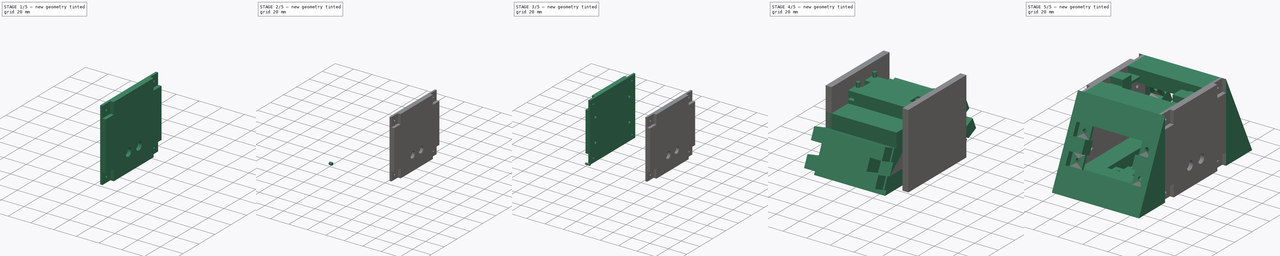
[diagram: build sequence overview — one tinted view per stage of 5, left to right]
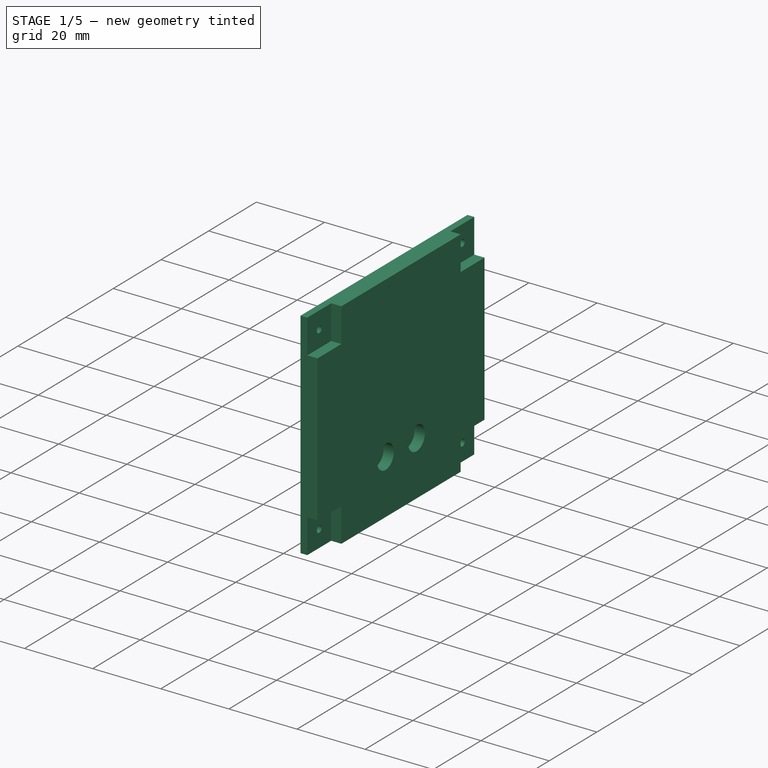
[diagram: stage 1 of 5 — iso view after this stage's code; geometry added in this stage tinted green]
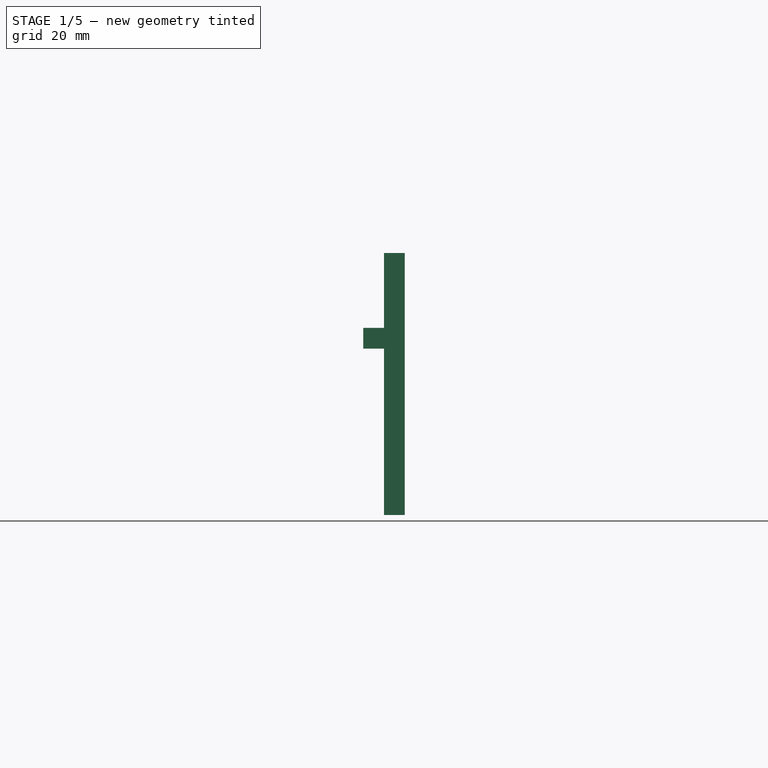
[diagram: stage 1 of 5 — front view after this stage's code; geometry added in this stage tinted green]
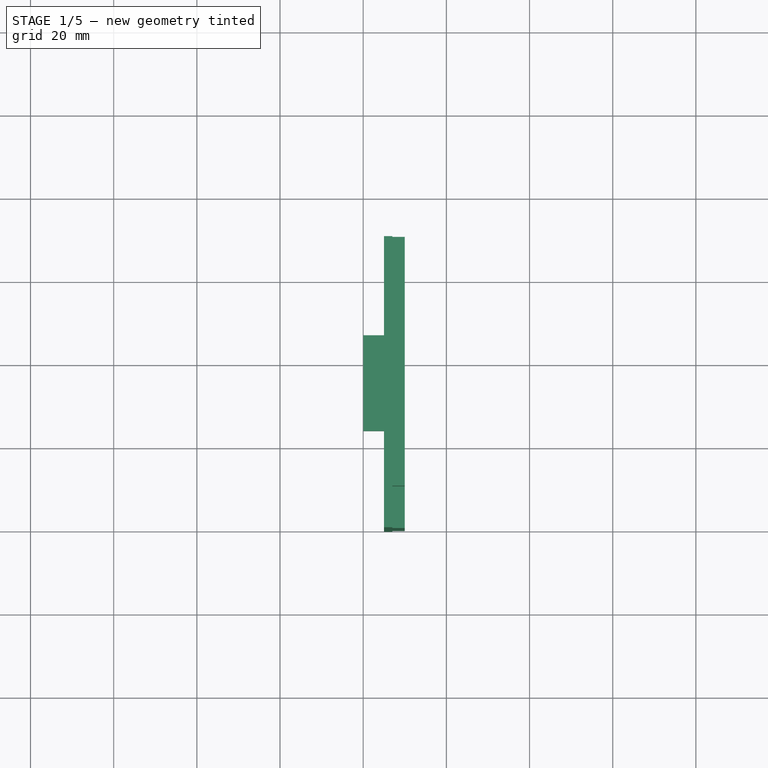
[diagram: stage 1 of 5 — top view after this stage's code; geometry added in this stage tinted green]
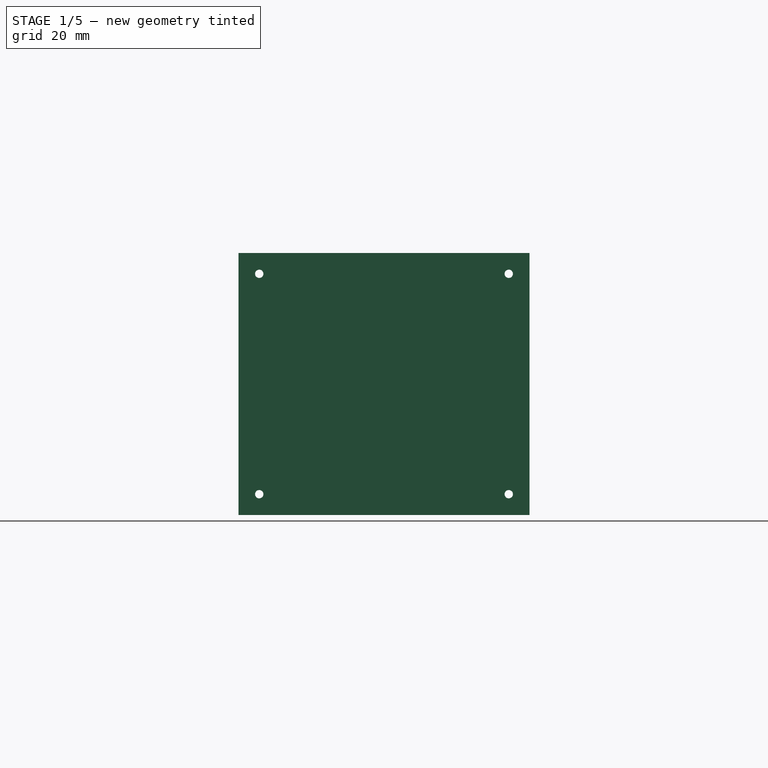
[diagram: stage 1 of 5 — right view after this stage's code; geometry added in this stage tinted green]
FCSTD DOCUMENT  (FreeCAD 0.16R6712 (Git))
Label: Comunicacion
License: All rights reserved
LicenseURL: http://en.wikipedia.org/wiki/All_rights_reserved
objects: Part::Cut×17, Part::FeaturePython×15, Sketcher::SketchObject×12, Part::Box×11, Part::Cylinder×11, PartDesign::Pad×6, PartDesign::Pocket×6, App::DocumentObjectGroup×2, Part::MultiFuse×2, Part::Chamfer×1
note: 93 computed .brp shape members not serialized (recipe doc carries the construction recipe); baked Part::Feature solids carry a one-line shape summary decoded from their .brp

FEATURE [Part::Box] Box004  label="TapaAB_base003"
  Height = 63
  Length = 5
  Width = 70
FEATURE [Part::Box] Box005  label="HuecoAB001"
  Height = 10
  Length = 3
  Width = 10
FEATURE [Part::FeaturePython] Array007  label="HuecosAB001"  # Draft array (typed FeaturePython)
  Angle = 360
  ArrayType = 0
  Axis = (0,0,1)
  Base = -> Box005
  Center = (0,0,0)
  Fuse = false
  IntervalAxis = (0,0,0)
  IntervalX = (0,0,53)
  IntervalY = (0,60,0)
  IntervalZ = (0,0,0)
  NumberPolar = 1
  NumberX = 2
  NumberY = 2
  NumberZ = 1
FEATURE [Part::Cut] Cut008  label="TapaAB_base004"
  Base = -> Box004
  Tool = -> Array007
FEATURE [Part::Cylinder] Cylinder005  label="AgujeroAB001"
  Angle = 360
  Height = 10
  Placement = pos=(0,0,0) rot=(0,1,0;1.5708rad)
  Radius = 1
FEATURE [Part::FeaturePython] Array008  label="AgujerosAB001"  # Draft array (typed FeaturePython)
  Angle = 360
  ArrayType = 0
  Axis = (0,0,1)
  Base = -> Cylinder005
  Center = (0,0,0)
  Fuse = false
  IntervalAxis = (0,0,0)
  IntervalX = (0,0,53)
  IntervalY = (0,60,0)
  IntervalZ = (0,0,0)
  NumberPolar = 1
  NumberX = 2
  NumberY = 2
  NumberZ = 1
  Placement = pos=(-1,5,5) rot=(0,0,1;0rad)
FEATURE [Part::Cut] Cut009  label="TapaB_base"
  Base = -> Cut008
  Placement = pos=(70,70,0) rot=(0,0,1;3.14159rad)
  Tool = -> Array008
FEATURE [Part::Box] Box009  label="SoporteB_Fijo"
  Height = 5
  Length = 5
  Placement = pos=(60,23.5,40) rot=(0,0,1;0rad)
  Width = 23
FEATURE [Part::MultiFuse] Fusion  label="TapaB_base_2"
  Shapes = -> [Cut009,Box009]
FEATURE [Part::Cylinder] Cylinder009  label="TB_SBM_AgujeroINT"
  Angle = 360
  Height = 2
  Placement = pos=(65,28.5,16) rot=(0,1,0;1.5708rad)
  Radius = 1.5
FEATURE [Part::Cylinder] Cylinder010  label="TB_SBM_AgujeroEXT"
  Angle = 360
  Height = 3
  Placement = pos=(67,28.5,16) rot=(0,1,0;1.5708rad)
  Radius = 3.5
FEATURE [Part::FeaturePython] Array014  label="TB_SBM_AgujerosINT"  # Draft array (typed FeaturePython)
  Angle = 360
  ArrayType = 0
  Axis = (0,0,1)
  Base = -> Cylinder009
  Center = (0,0,0)
  Fuse = false
  IntervalAxis = (0,0,0)
  IntervalX = (0,0,0)
  IntervalY = (0,13,0)
  IntervalZ = (0,0,0)
  NumberPolar = 1
  NumberX = 1
  NumberY = 2
  NumberZ = 1
FEATURE [Part::FeaturePython] Array015  label="TB_SBM_AgujerosEXT"  # Draft array (typed FeaturePython)
  Angle = 360
  ArrayType = 0
  Axis = (0,0,1)
  Base = -> Cylinder010
  Center = (0,0,0)
  Fuse = false
  IntervalAxis = (0,0,0)
  IntervalX = (0,0,0)
  IntervalY = (0,13,0)
  IntervalZ = (0,0,0)
  NumberPolar = 1
  NumberX = 1
  NumberY = 2
  NumberZ = 1
FEATURE [Part::Cut] Cut015  label="TapaB_base_3"
  Base = -> Fusion
  Tool = -> Array015
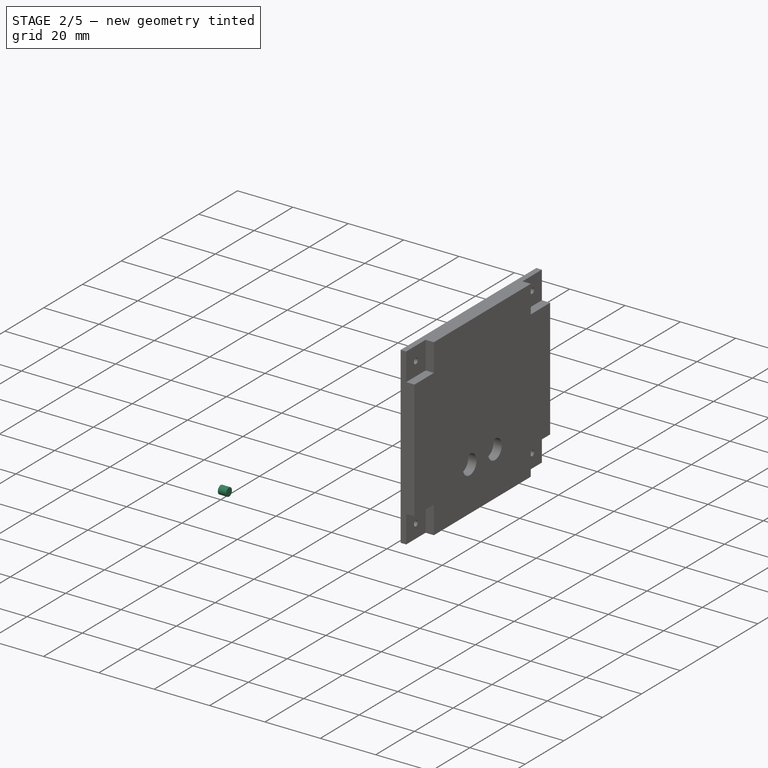
[diagram: stage 2 of 5 — iso view after this stage's code; geometry added in this stage tinted green]
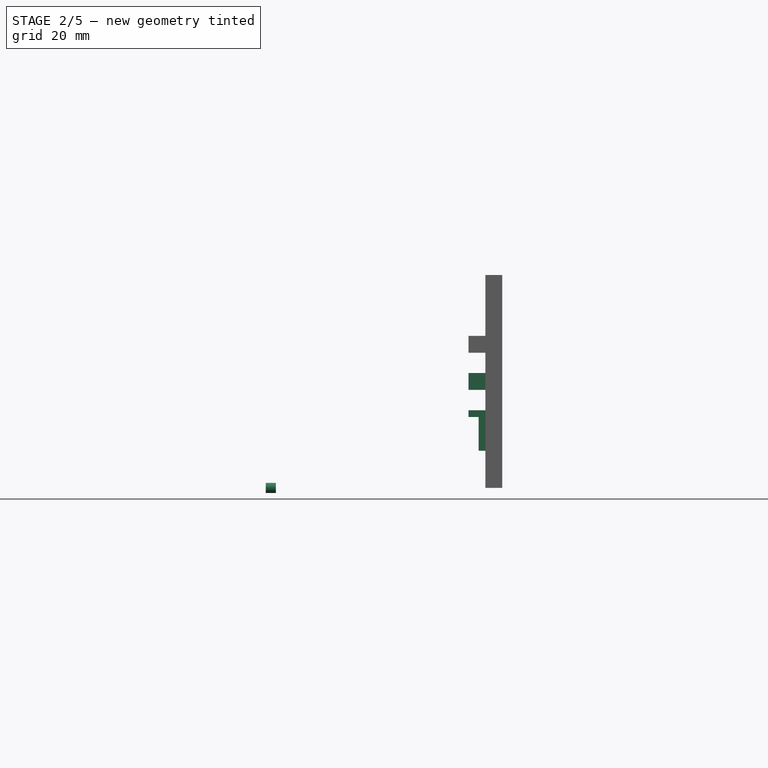
[diagram: stage 2 of 5 — front view after this stage's code; geometry added in this stage tinted green]
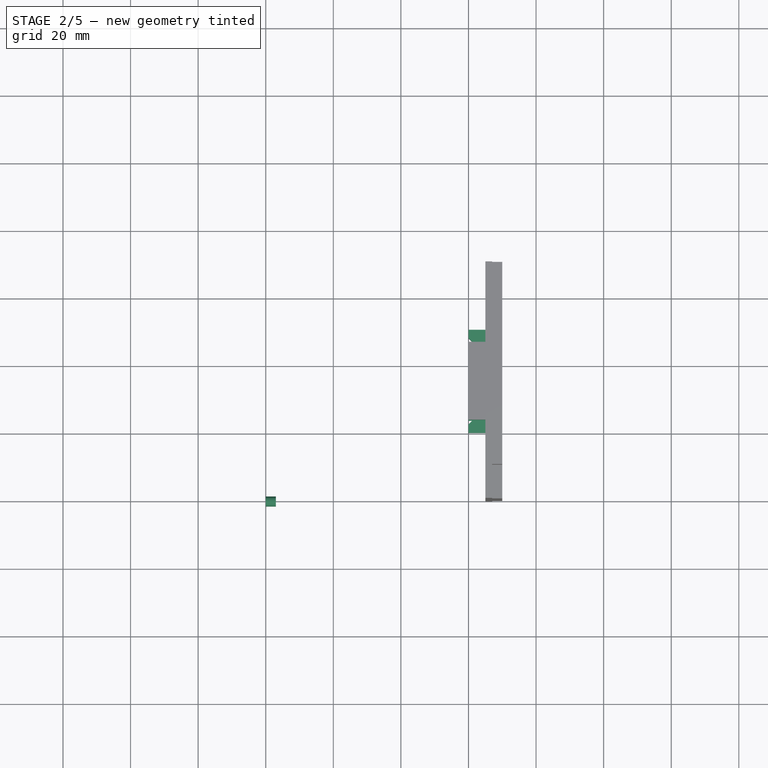
[diagram: stage 2 of 5 — top view after this stage's code; geometry added in this stage tinted green]
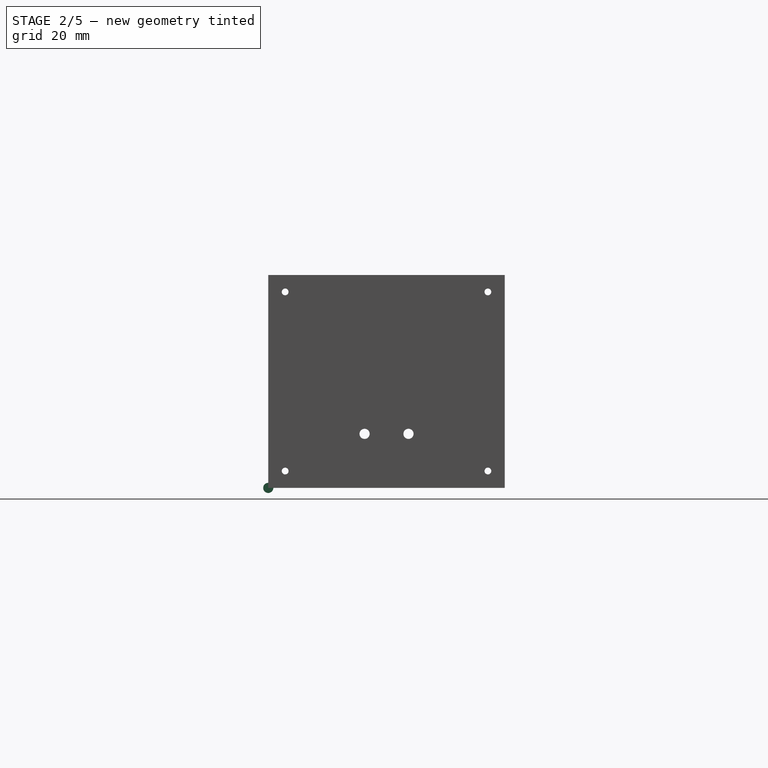
[diagram: stage 2 of 5 — right view after this stage's code; geometry added in this stage tinted green]
FEATURE [Part::Cylinder] Cylinder007  label="AgujeroA_Int"
  Angle = 360
  Height = 3
  Placement = pos=(0,0,0) rot=(0,1,0;1.5708rad)
  Radius = 1.5
FEATURE [Part::Box] Box007  label="Base_Clavija"
  Height = 5
  Length = 5
  Width = 5
FEATURE [Part::FeaturePython] Array012  label="Base_Clavijas"  # Draft array (typed FeaturePython)
  Angle = 360
  ArrayType = 0
  Axis = (0,0,1)
  Base = -> Box007
  Center = (0,0,0)
  Fuse = false
  IntervalAxis = (0,0,0)
  IntervalX = (0,0,0)
  IntervalY = (0,25.5,0)
  IntervalZ = (0,0,0)
  NumberPolar = 1
  NumberX = 1
  NumberY = 2
  NumberZ = 1
FEATURE [Part::Box] Box008  label="Hueco_Clavija"
  Height = 2
  Length = 5
  Placement = pos=(0,3.75,0) rot=(0,0,1;0rad)
  Width = 23
FEATURE [Part::Cut] Cut012  label="Base_Clavijas_2"
  Base = -> Array012
  Tool = -> Box008
FEATURE [Part::Chamfer] Chamfer  label="Clavijas"
  Base = -> Cut012
  Edges = 2 edges r=2.5: [Edge7,Edge26]
  Placement = pos=(65,19.75,29) rot=(0,-1,0;1.5708rad)
FEATURE [Part::Box] Box010  label="SoporteB_Movil_1"
  Height = 12
  Length = 5
  Width = 23
FEATURE [Part::Box] Box011  label="SoporteB_Movil_Hueco"
  Height = 10
  Length = 3
  Width = 23
FEATURE [Part::Cut] Cut013  label="SoporteB_Movil_2"
  Base = -> Box010
  Placement = pos=(60,23.5,11) rot=(0,0,1;0rad)
  Tool = -> Box011
FEATURE [Part::Cylinder] Cylinder008  label="SBM_Agujero"
  Angle = 360
  Height = 3
  Placement = pos=(62,28.5,16) rot=(0,1,0;1.5708rad)
  Radius = 1.5
FEATURE [Part::FeaturePython] Array013  label="SBM_Agujeros"  # Draft array (typed FeaturePython)
  Angle = 360
  ArrayType = 0
  Axis = (0,0,1)
  Base = -> Cylinder008
  Center = (0,0,0)
  Fuse = false
  IntervalAxis = (0,0,0)
  IntervalX = (0,0,0)
  IntervalY = (0,13,0)
  IntervalZ = (0,0,0)
  NumberPolar = 1
  NumberX = 1
  NumberY = 2
  NumberZ = 1
FEATURE [Part::Cut] Cut014  label="SoporteB_Movil"
  Base = -> Cut013
  Tool = -> Array013
FEATURE [Part::Cut] Cut016  label="TapaB_base_4"
  Base = -> Cut015
  Tool = -> Array014
FEATURE [Part::MultiFuse] Fusion001  label="TapaB"
  Shapes = -> [Cut016,Chamfer]
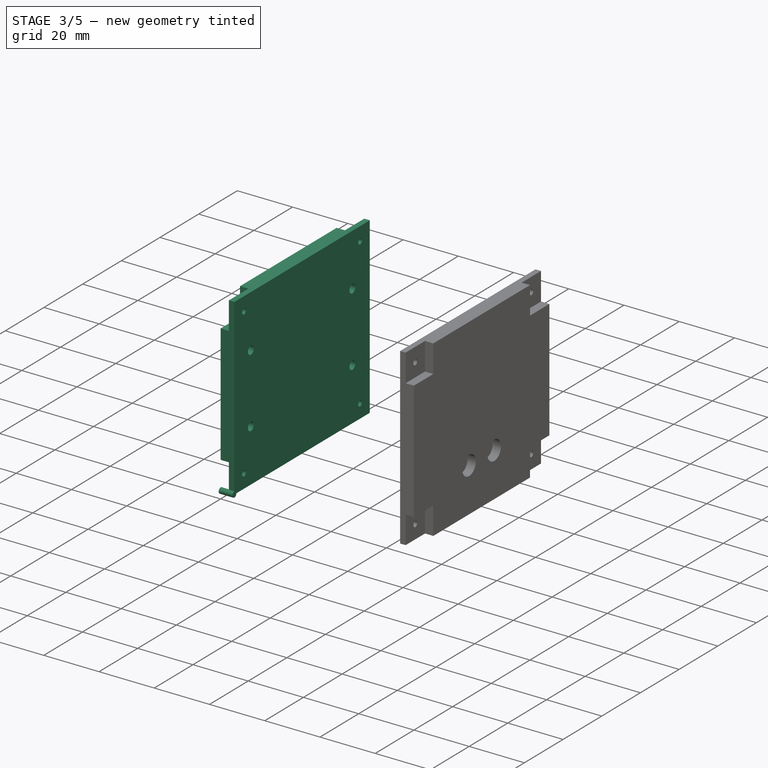
[diagram: stage 3 of 5 — iso view after this stage's code; geometry added in this stage tinted green]
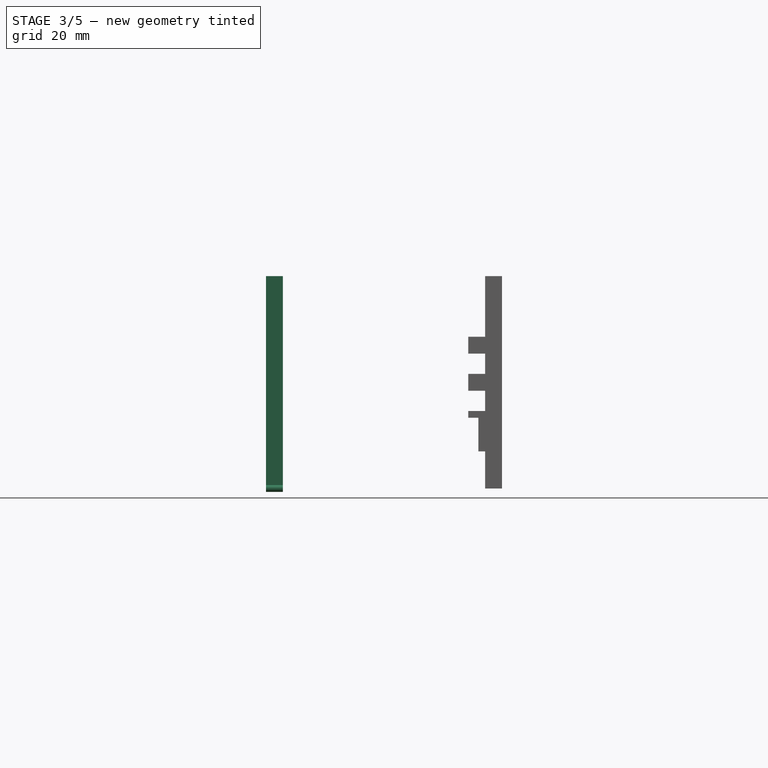
[diagram: stage 3 of 5 — front view after this stage's code; geometry added in this stage tinted green]
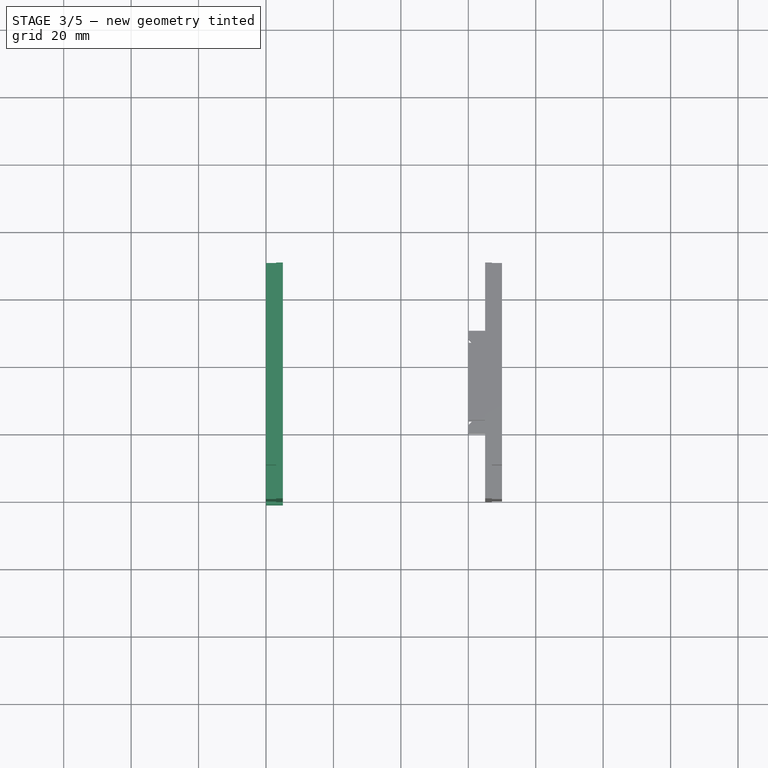
[diagram: stage 3 of 5 — top view after this stage's code; geometry added in this stage tinted green]
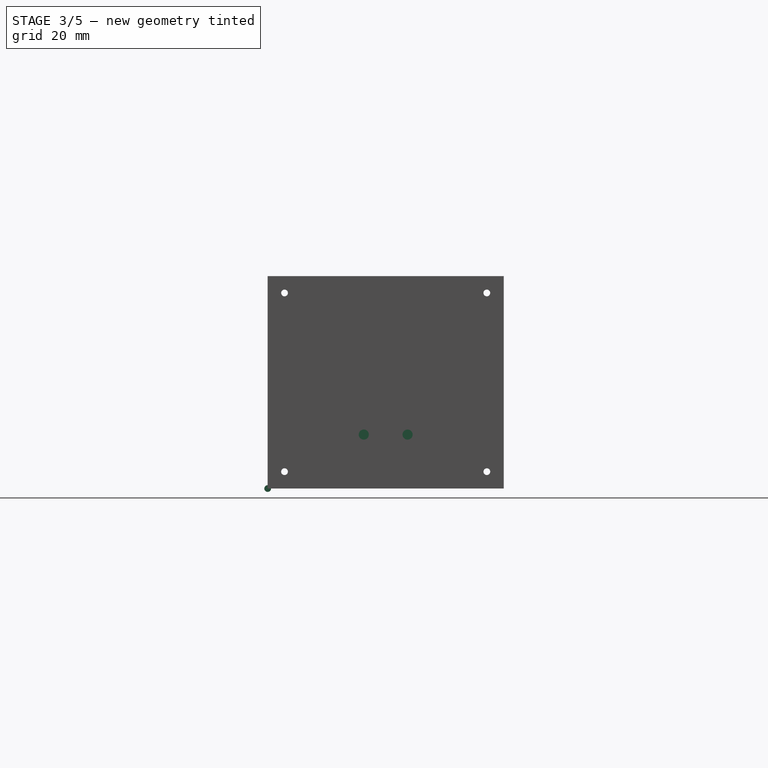
[diagram: stage 3 of 5 — right view after this stage's code; geometry added in this stage tinted green]
FEATURE [Part::Cylinder] Cylinder003  label="AgujeroB"
  Angle = 360
  Height = 5
  Placement = pos=(0,0,0) rot=(0,1,0;1.5708rad)
  Radius = 1
FEATURE [Part::Box] Box002  label="TapaAB_base"
  Height = 63
  Length = 5
  Width = 70
FEATURE [Part::Box] Box003  label="HuecoAB"
  Height = 10
  Length = 3
  Width = 10
FEATURE [Part::FeaturePython] Array005  label="HuecosAB"  # Draft array (typed FeaturePython)
  Angle = 360
  ArrayType = 0
  Axis = (0,0,1)
  Base = -> Box003
  Center = (0,0,0)
  Fuse = false
  IntervalAxis = (0,0,0)
  IntervalX = (0,0,53)
  IntervalY = (0,60,0)
  IntervalZ = (0,0,0)
  NumberPolar = 1
  NumberX = 2
  NumberY = 2
  NumberZ = 1
FEATURE [Part::Cut] Cut006  label="TapaAB_base2"
  Base = -> Box002
  Tool = -> Array005
FEATURE [Part::Cylinder] Cylinder004  label="AgujeroAB"
  Angle = 360
  Height = 10
  Placement = pos=(0,0,0) rot=(0,1,0;1.5708rad)
  Radius = 1
FEATURE [Part::FeaturePython] Array006  label="AgujerosAB"  # Draft array (typed FeaturePython)
  Angle = 360
  ArrayType = 0
  Axis = (0,0,1)
  Base = -> Cylinder004
  Center = (0,0,0)
  Fuse = false
  IntervalAxis = (0,0,0)
  IntervalX = (0,0,53)
  IntervalY = (0,60,0)
  IntervalZ = (0,0,0)
  NumberPolar = 1
  NumberX = 2
  NumberY = 2
  NumberZ = 1
  Placement = pos=(-1,5,5) rot=(0,0,1;0rad)
FEATURE [Part::Cut] Cut007  label="TapaA_base"
  Base = -> Cut006
  Tool = -> Array006
FEATURE [Part::Cylinder] Cylinder006  label="AgujeroA_Ext"
  Angle = 360
  Height = 4
  Placement = pos=(0,0,0) rot=(0,1,0;1.5708rad)
  Radius = 3.5
FEATURE [Part::FeaturePython] Array009  label="AgujerosA_Ext"  # Draft array (typed FeaturePython)
  Angle = 360
  ArrayType = 0
  Axis = (0,0,1)
  Base = -> Cylinder006
  Center = (0,0,0)
  Fuse = false
  IntervalAxis = (0,0,0)
  IntervalX = (0,0,25)
  IntervalY = (0,52.5,0)
  IntervalZ = (0,0,0)
  NumberPolar = 1
  NumberX = 2
  NumberY = 2
  NumberZ = 1
  Placement = pos=(-1,8.5,19) rot=(0,0,1;0rad)
FEATURE [Part::Cut] Cut010  label="TapaA_base_2"
  Base = -> Cut007
  Tool = -> Array009
FEATURE [Part::FeaturePython] Array010  label="AgujerosA_Int"  # Draft array (typed FeaturePython)
  Angle = 360
  ArrayType = 0
  Axis = (0,0,1)
  Base = -> Cylinder007
  Center = (0,0,0)
  Fuse = false
  IntervalAxis = (0,0,0)
  IntervalX = (0,0,25)
  IntervalY = (0,52.5,0)
  IntervalZ = (0,0,0)
  NumberPolar = 1
  NumberX = 2
  NumberY = 2
  NumberZ = 1
  Placement = pos=(3,8.5,19) rot=(0,0,1;0rad)
FEATURE [Part::Cut] Cut011  label="TapaA"
  Base = -> Cut010
  Tool = -> Array010
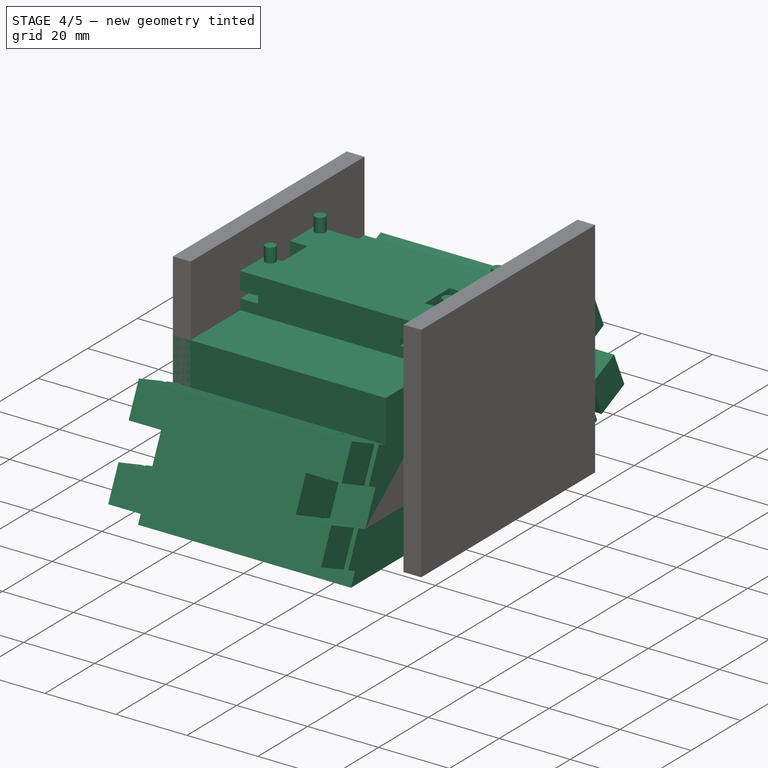
[diagram: stage 4 of 5 — iso view after this stage's code; geometry added in this stage tinted green]
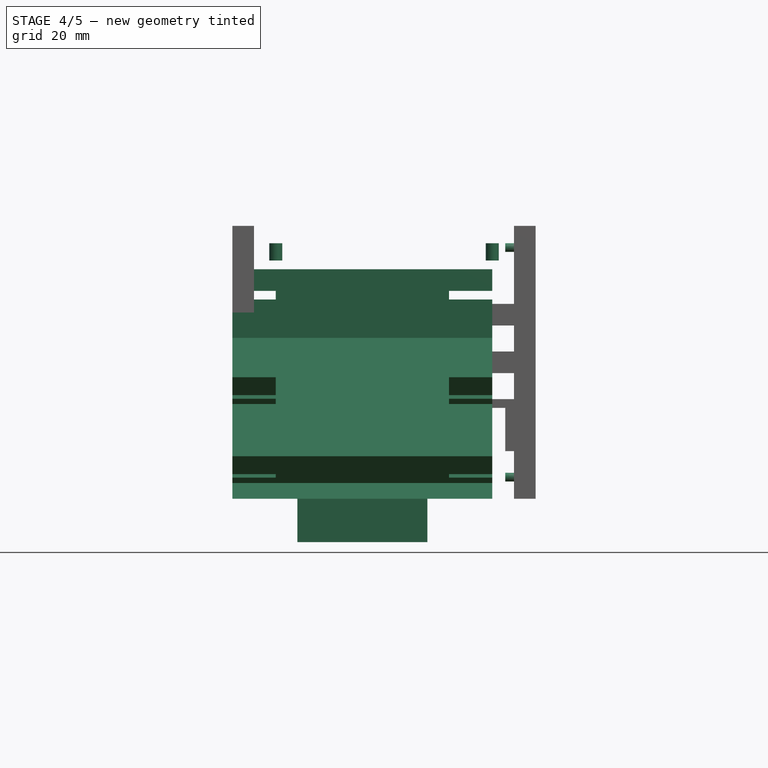
[diagram: stage 4 of 5 — front view after this stage's code; geometry added in this stage tinted green]
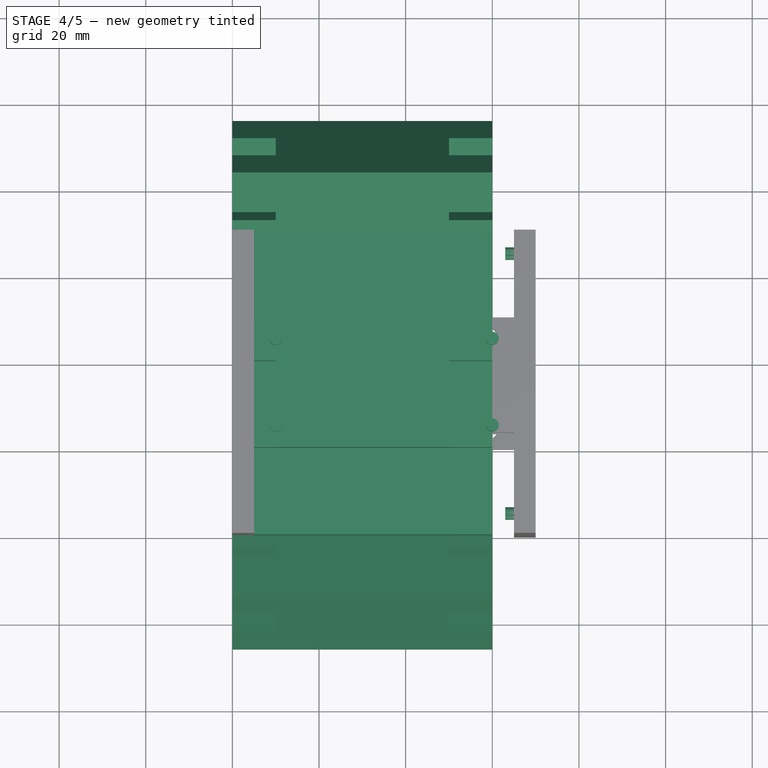
[diagram: stage 4 of 5 — top view after this stage's code; geometry added in this stage tinted green]
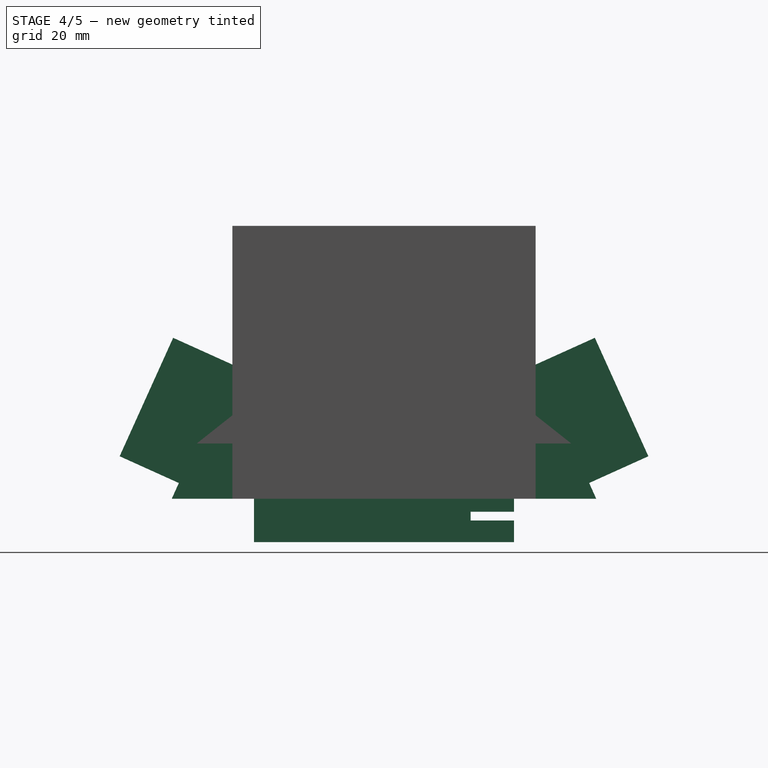
[diagram: stage 4 of 5 — right view after this stage's code; geometry added in this stage tinted green]
FEATURE [Part::Box] Box  label="BaseHuecoCarcasa"
  Height = 43
  Length = 60
  Width = 70
FEATURE [Sketcher::SketchObject] Sketch001
  ExternalGeometry = -> [Box]
  Placement = pos=(0,0,43) rot=(0,0,1;0rad)
  Support = -> Box [Face6]
  sketch-geometry (16):
    g0: LineSegment StartX=10 StartY=50 StartZ=0 EndX=50 EndY=50 EndZ=0
    g1: LineSegment StartX=50 StartY=20 StartZ=0 EndX=10 EndY=20 EndZ=0
    g2: LineSegment StartX=10 StartY=30 StartZ=0 EndX=10 EndY=40 EndZ=0
    g3: LineSegment StartX=50 StartY=50 StartZ=0 EndX=60 EndY=50 EndZ=0
    g4: LineSegment StartX=60 StartY=50 StartZ=0 EndX=60 EndY=40 EndZ=0
    g5: LineSegment StartX=50 StartY=40 StartZ=0 EndX=60 EndY=40 EndZ=0
    g6: LineSegment StartX=50 StartY=30 StartZ=0 EndX=60 EndY=30 EndZ=0
    g7: LineSegment StartX=60 StartY=30 StartZ=0 EndX=60 EndY=20 EndZ=0
    g8: LineSegment StartX=50 StartY=20 StartZ=0 EndX=60 EndY=20 EndZ=0
    g9: LineSegment StartX=10 StartY=50 StartZ=0 EndX=0 EndY=50 EndZ=0
    g10: LineSegment StartX=0 StartY=50 StartZ=0 EndX=0 EndY=40 EndZ=0
    g11: LineSegment StartX=10 StartY=40 StartZ=0 EndX=0 EndY=40 EndZ=0
    g12: LineSegment StartX=10 StartY=30 StartZ=0 EndX=0 EndY=30 EndZ=0
    g13: LineSegment StartX=0 StartY=30 StartZ=0 EndX=0 EndY=20 EndZ=0
    g14: LineSegment StartX=10 StartY=20 StartZ=0 EndX=0 EndY=20 EndZ=0
    g15: LineSegment StartX=50 StartY=40 StartZ=0 EndX=50 EndY=30 EndZ=0
  constraints (48):
    c: Horizontal(g0)
    c: Horizontal(g1)
    c: Vertical(g2)
    c: Equal(g0,g1)
    c: DistanceY(g1,g0) = 30
    c: DistanceX(g0,g0) = 40
    c: Horizontal(g3)
    c: Vertical(g4)
    c: Horizontal(g5)
    c: Coincident(g4,g5)
    c: Coincident(g3,g4)
    c: Equal(g3,g5)
    c: Equal(g5,g4)
    c: DistanceY(g4,g4) = 10
    c: Horizontal(g6)
    c: Vertical(g7)
    c: Horizontal(g8)
    c: Coincident(g7,g8)
    c: Coincident(g6,g7)
    c: Equal(g6,g8)
    c: Equal(g8,g7)
    c: Equal(g4,g7) = 10
    c: Horizontal(g9)
    c: Vertical(g10)
    c: Horizontal(g11)
    c: Coincident(g10,g11)
    c: Coincident(g9,g10)
    c: Equal(g9,g11)
    c: Equal(g11,g10)
    c: DistanceY(g10,g10) = 10
    c: Horizontal(g12)
    c: Vertical(g13)
    c: Horizontal(g14)
    c: Coincident(g13,g14)
    c: Coincident(g12,g13)
    c: Equal(g12,g14)
    c: Equal(g14,g13)
    c: Equal(g10,g13) = 10
    c: Coincident(g9,g0)
    c: Coincident(g14,g1)
    c: Coincident(g3,g0)
    c: PointOnObject(g3,g-3)
    c: DistanceY(g3,g-3) = 20
    c: PointOnObject(g2,g11)
    c: PointOnObject(g2,g12)
    c: Coincident(g15,g5)
    c: Coincident(g15,g6)
    c: Vertical(g15)
FEATURE [PartDesign::Pad] Pad001  label="BHC2_ParteSup"
  Length = 10
  Length2 = 100
  Sketch = -> Sketch001
  Type = 0
FEATURE [Sketcher::SketchObject] Sketch002
  ExternalGeometry = -> [Pad001]
  Placement = pos=(0,0,0) rot=(1,0,0;3.14159rad)
  Support = -> Pad001 [Face7]
  sketch-geometry (12):
    g0: LineSegment StartX=15 StartY=-5 StartZ=0 EndX=25 EndY=-5 EndZ=0
    g1: LineSegment StartX=25 StartY=-5 StartZ=0 EndX=25 EndY=-15 EndZ=0
    g2: LineSegment StartX=25 StartY=-15 StartZ=0 EndX=35 EndY=-15 EndZ=0
    g3: LineSegment StartX=35 StartY=-15 StartZ=0 EndX=35 EndY=-5 EndZ=0
    g4: LineSegment StartX=35 StartY=-5 StartZ=0 EndX=45 EndY=-5 EndZ=0
    g5: LineSegment StartX=45 StartY=-5 StartZ=0 EndX=45 EndY=-65 EndZ=0
    g6: LineSegment StartX=45 StartY=-65 StartZ=0 EndX=35 EndY=-65 EndZ=0
    g7: LineSegment StartX=35 StartY=-65 StartZ=0 EndX=35 EndY=-55 EndZ=0
    g8: LineSegment StartX=35 StartY=-55 StartZ=0 EndX=25 EndY=-55 EndZ=0
    g9: LineSegment StartX=25 StartY=-55 StartZ=0 EndX=25 EndY=-65 EndZ=0
    g10: LineSegment StartX=25 StartY=-65 StartZ=0 EndX=15 EndY=-65 EndZ=0
    g11: LineSegment StartX=15 StartY=-65 StartZ=0 EndX=15 EndY=-5 EndZ=0
  constraints (38):
    c: Horizontal(g0)
    c: Coincident(g0,g1)
    c: Vertical(g1)
    c: Coincident(g1,g2)
    c: Horizontal(g2)
    c: Coincident(g2,g3)
    c: Vertical(g3)
    c: Coincident(g3,g4)
    c: Horizontal(g4)
    c: Coincident(g4,g5)
    c: Vertical(g5)
    c: Coincident(g5,g6)
    c: Horizontal(g6)
    c: Coincident(g6,g7)
    c: Vertical(g7)
    c: Coincident(g7,g8)
    c: Coincident(g8,g9)
    c: Vertical(g9)
    c: Coincident(g9,g10)
    c: Coincident(g10,g11)
    c: Coincident(g11,g0)
    c: Vertical(g11)
    c: Horizontal(g10)
    c: Horizontal(g8)
    c: Equal(g0,g4)
    c: Equal(g4,g2)
    c: Equal(g2,g8)
    c: Equal(g8,g10)
    c: Equal(g10,g6)
    c: Equal(g1,g3)
    c: Equal(g3,g7)
    c: Equal(g7,g9)
    c: Equal(g5,g11)
    c: DistanceY(g11,g11) = 60
    c: DistanceX(g10,g10) = 10
    c: DistanceY(g7,g7) = 10
    c: DistanceX(g5,g-4) = 15
    c: DistanceY(g-4,g5) = 5
FEATURE [PartDesign::Pad] Pad002  label="BHC3_ParteInf"
  Length = 10
  Length2 = 100
  Sketch = -> Sketch002
  Type = 0
FEATURE [Sketcher::SketchObject] Sketch003
  ExternalGeometry = -> [Pad002]
  Placement = pos=(60,0,0) rot=(0.57735,0.57735,0.57735;2.0944rad)
  Support = -> Pad002 [Face14]
  sketch-geometry (6):
    g0: LineSegment StartX=-14 StartY=0 StartZ=0 EndX=0 EndY=0 EndZ=0
    g1: LineSegment StartX=0 StartY=30.9839 StartZ=0 EndX=0 EndY=0 EndZ=0
    g2: LineSegment StartX=0 StartY=30.9839 StartZ=0 EndX=-14 EndY=0 EndZ=0
    g3: LineSegment StartX=70 StartY=30.9839 StartZ=0 EndX=70 EndY=0 EndZ=0
    g4: LineSegment StartX=70 StartY=0 StartZ=0 EndX=84 EndY=0 EndZ=0
    g5: LineSegment StartX=70 StartY=30.9839 StartZ=0 EndX=84 EndY=0 EndZ=0
  constraints (16):
    c: Horizontal(g0)
    c: Vertical(g1)
    c: Coincident(g0,g1)
    c: DistanceX(g0,g0) = 14
    c: Coincident(g2,g0)
    c: Coincident(g2,g1)
    c: Distance(g2) = 34
    c: Vertical(g3)
    c: Horizontal(g4)
    c: Coincident(g3,g4)
    c: Coincident(g5,g3)
    c: Coincident(g5,g4)
    c: Distance(g5) = 34
    c: DistanceX(g4,g4) = 14
    c: Coincident(g3,g-3)
    c: Coincident(g0,g-1)
FEATURE [PartDesign::Pad] Pad003  label="BHC4_diagonales"
  Length = 60
  Length2 = 100
  Reversed = true
  Sketch = -> Sketch003
  Type = 0
FEATURE [Sketcher::SketchObject] Sketch004
  ExternalGeometry = -> [Pad003]
  Placement = pos=(0,-11.6263,5.25332) rot=(1,0,0;1.14641rad)
  Support = -> Pad003 [Face12]
  sketch-geometry (12):
    g0: LineSegment StartX=0 StartY=28.2353 StartZ=0 EndX=60 EndY=28.2353 EndZ=0
    g1: LineSegment StartX=60 StartY=28.2353 StartZ=0 EndX=60 EndY=18.2353 EndZ=0
    g2: LineSegment StartX=60 StartY=18.2353 StartZ=0 EndX=50 EndY=18.2353 EndZ=0
    g3: LineSegment StartX=50 StartY=18.2353 StartZ=0 EndX=50 EndY=8.23529 EndZ=0
    g4: LineSegment StartX=50 StartY=8.23529 StartZ=0 EndX=60 EndY=8.23529 EndZ=0
    g5: LineSegment StartX=60 StartY=8.23529 StartZ=0 EndX=60 EndY=-1.76471 EndZ=0
    g6: LineSegment StartX=60 StartY=-1.76471 StartZ=0 EndX=0 EndY=-1.76471 EndZ=0
    g7: LineSegment StartX=0 StartY=-1.76471 StartZ=0 EndX=0 EndY=8.23529 EndZ=0
    g8: LineSegment StartX=0 StartY=8.23529 StartZ=0 EndX=10 EndY=8.23529 EndZ=0
    g9: LineSegment StartX=10 StartY=8.23529 StartZ=0 EndX=10 EndY=18.2353 EndZ=0
    g10: LineSegment StartX=10 StartY=18.2353 StartZ=0 EndX=0 EndY=18.2353 EndZ=0
    g11: LineSegment StartX=0 StartY=18.2353 StartZ=0 EndX=0 EndY=28.2353 EndZ=0
  constraints (37):
    c: Horizontal(g0)
    c: Coincident(g0,g1)
    c: Vertical(g1)
    c: Coincident(g1,g2)
    c: Horizontal(g2)
    c: Coincident(g2,g3)
    c: Vertical(g3)
    c: Coincident(g3,g4)
    c: Horizontal(g4)
    c: Coincident(g4,g5)
    c: Vertical(g5)
    c: Coincident(g5,g6)
    c: Horizontal(g6)
    c: Coincident(g6,g7)
    c: Vertical(g7)
    c: Coincident(g7,g8)
    c: Horizontal(g8)
    c: Coincident(g8,g9)
    c: Vertical(g9)
    c: Coincident(g9,g10)
    c: Horizontal(g10)
    c: Coincident(g10,g11)
    c: Coincident(g11,g0)
    c: Vertical(g11)
    c: Equal(g0,g6)
    c: Equal(g2,g4)
    c: Equal(g4,g8)
    c: Equal(g8,g10)
    c: Equal(g11,g9)
    c: Equal(g9,g7)
    c: Equal(g7,g5)
    c: Equal(g5,g3)
    c: Equal(g3,g1)
    c: DistanceX(g6,g6) = 60
    c: DistanceX(g2,g2) = 10
    c: DistanceY(g11,g11) = 10
    c: Coincident(g0,g-4)
FEATURE [PartDesign::Pad] Pad004  label="BHC5_ladoI"
  Length = 15
  Length2 = 100
  Sketch = -> Sketch004
  Type = 0
FEATURE [Sketcher::SketchObject] Sketch005
  ExternalGeometry = -> [Pad004]
  Placement = pos=(0,69.7578,31.5199) rot=(0,0.542326,0.840168;3.14159rad)
  Support = -> Pad004 [Face11]
  sketch-geometry (12):
    g0: LineSegment StartX=-60 StartY=-0.588235 StartZ=0 EndX=0 EndY=-0.588235 EndZ=0
    g1: LineSegment StartX=0 StartY=-0.588235 StartZ=0 EndX=0 EndY=-10.5882 EndZ=0
    g2: LineSegment StartX=0 StartY=-10.5882 StartZ=0 EndX=-10 EndY=-10.5882 EndZ=0
    g3: LineSegment StartX=-10 StartY=-10.5882 StartZ=0 EndX=-10 EndY=-20.5882 EndZ=0
    g4: LineSegment StartX=-10 StartY=-20.5882 StartZ=0 EndX=0 EndY=-20.5882 EndZ=0
    g5: LineSegment StartX=0 StartY=-20.5882 StartZ=0 EndX=0 EndY=-30.5882 EndZ=0
    g6: LineSegment StartX=0 StartY=-30.5882 StartZ=0 EndX=-60 EndY=-30.5882 EndZ=0
    g7: LineSegment StartX=-60 StartY=-30.5882 StartZ=0 EndX=-60 EndY=-20.5882 EndZ=0
    g8: LineSegment StartX=-60 StartY=-20.5882 StartZ=0 EndX=-50 EndY=-20.5882 EndZ=0
    g9: LineSegment StartX=-50 StartY=-20.5882 StartZ=0 EndX=-50 EndY=-10.5882 EndZ=0
    g10: LineSegment StartX=-50 StartY=-10.5882 StartZ=0 EndX=-60 EndY=-10.5882 EndZ=0
    g11: LineSegment StartX=-60 StartY=-10.5882 StartZ=0 EndX=-60 EndY=-0.588235 EndZ=0
  constraints (37):
    c: Horizontal(g0)
    c: Coincident(g0,g1)
    c: Coincident(g1,g2)
    c: Coincident(g2,g3)
    c: Coincident(g3,g4)
    c: Coincident(g4,g5)
    c: Coincident(g5,g6)
    c: Coincident(g6,g7)
    c: Coincident(g7,g8)
    c: Coincident(g8,g9)
    c: Vertical(g9)
    c: Coincident(g9,g10)
    c: Coincident(g10,g11)
    c: Coincident(g11,g0)
    c: Vertical(g11)
    c: Vertical(g1)
    c: Vertical(g3)
    c: Vertical(g5)
    c: Vertical(g7)
    c: Horizontal(g10)
    c: Horizontal(g2)
    c: Horizontal(g4)
    c: Horizontal(g8)
    c: Horizontal(g6)
    c: Equal(g0,g6)
    c: Equal(g2,g4)
    c: Equal(g4,g8)
    c: Equal(g8,g10)
    c: Equal(g1,g3)
    c: Equal(g3,g9)
    c: Equal(g9,g11)
    c: Equal(g11,g7)
    c: Equal(g7,g5)
    c: DistanceX(g10,g10) = 10
    c: DistanceY(g11,g11) = 10
    c: DistanceX(g6,g6) = 60
    c: Coincident(g0,g-4)
FEATURE [PartDesign::Pad] Pad005  label="BHC6_ladoD"
  Length = 15
  Length2 = 100
  Sketch = -> Sketch005
  Type = 0
FEATURE [Sketcher::SketchObject] Sketch006
  ExternalGeometry = -> [Pad005]
  Placement = pos=(60,0,0) rot=(0.57735,0.57735,0.57735;2.0944rad)
  Support = -> Pad005 [Face55]
  sketch-geometry (26):
    g0: LineSegment StartX=20 StartY=48 StartZ=0 EndX=30 EndY=48 EndZ=0
    g1: LineSegment StartX=30 StartY=48 StartZ=0 EndX=30 EndY=46 EndZ=0
    g2: LineSegment StartX=30 StartY=46 StartZ=0 EndX=20 EndY=46 EndZ=0
    g3: LineSegment StartX=20 StartY=46 StartZ=0 EndX=20 EndY=48 EndZ=0
    g4: LineSegment StartX=40 StartY=48 StartZ=0 EndX=50 EndY=48 EndZ=0
    g5: LineSegment StartX=50 StartY=48 StartZ=0 EndX=50 EndY=46 EndZ=0
    g6: LineSegment StartX=50 StartY=46 StartZ=0 EndX=40 EndY=46 EndZ=0
    g7: LineSegment StartX=40 StartY=46 StartZ=0 EndX=40 EndY=48 EndZ=0
    g8: LineSegment [constr] StartX=30 StartY=46 StartZ=0 EndX=40 EndY=46 EndZ=0
    g9: GeomPoint [constr] X=-16.9094 Y=5.70398 Z=0
    g10: LineSegment StartX=-16.9094 StartY=5.70398 StartZ=0 EndX=-12.7917 EndY=14.8169 EndZ=0
    g11: LineSegment StartX=-8.6741 StartY=23.9298 StartZ=0 EndX=-4.55645 EndY=33.0427 EndZ=0
    g12: LineSegment StartX=-6.85152 StartY=23.1063 StartZ=0 EndX=-2.73387 EndY=32.2192 EndZ=0
    g13: LineSegment StartX=-4.55645 StartY=33.0427 StartZ=0 EndX=-2.73387 EndY=32.2192 EndZ=0
    g14: LineSegment StartX=-8.6741 StartY=23.9298 StartZ=0 EndX=-6.85152 EndY=23.1063 EndZ=0
    g15: LineSegment StartX=-15.0868 StartY=4.88045 StartZ=0 EndX=-10.9692 EndY=13.9934 EndZ=0
    g16: LineSegment StartX=-12.7917 StartY=14.8169 StartZ=0 EndX=-10.9692 EndY=13.9934 EndZ=0
    g17: LineSegment StartX=-16.9094 StartY=5.70398 StartZ=0 EndX=-15.0868 EndY=4.88045 EndZ=0
    g18: LineSegment StartX=74.5565 StartY=33.0427 StartZ=0 EndX=78.6741 EndY=23.9298 EndZ=0
    g19: LineSegment StartX=72.7339 StartY=32.2192 StartZ=0 EndX=76.8515 EndY=23.1063 EndZ=0
    g20: LineSegment StartX=80.9692 StartY=13.9934 StartZ=0 EndX=85.0868 EndY=4.88045 EndZ=0
    g21: LineSegment StartX=82.7917 StartY=14.8169 StartZ=0 EndX=86.9094 EndY=5.70398 EndZ=0
    g22: LineSegment StartX=74.5565 StartY=33.0427 StartZ=0 EndX=72.7339 EndY=32.2192 EndZ=0
    g23: LineSegment StartX=78.6741 StartY=23.9298 StartZ=0 EndX=76.8515 EndY=23.1063 EndZ=0
    g24: LineSegment StartX=82.7917 StartY=14.8169 StartZ=0 EndX=80.9692 EndY=13.9934 EndZ=0
    g25: LineSegment StartX=85.0868 StartY=4.88045 StartZ=0 EndX=86.9094 EndY=5.70398 EndZ=0
  constraints (79):
    c: Coincident(g0,g1)
    c: Coincident(g1,g2)
    c: Coincident(g2,g3)
    c: Coincident(g3,g0)
    c: Horizontal(g0)
    c: Horizontal(g2)
    c: Vertical(g1)
    c: Vertical(g3)
    c: Equal(g0,g2)
    c: Equal(g3,g1)
    c: DistanceY(g3,g3) = 2
    c: DistanceX(g2,g2) = 10
    c: Coincident(g4,g5)
    c: Coincident(g5,g6)
    c: Coincident(g6,g7)
    c: Coincident(g7,g4)
    c: Horizontal(g4)
    c: Horizontal(g6)
    c: Vertical(g5)
    c: Vertical(g7)
    c: Equal(g4,g6)
    c: Equal(g7,g5)
    c: Equal(g3,g7) = 2
    c: Equal(g2,g6) = 10
    c: Coincident(g8,g1)
    c: Coincident(g8,g6)
    c: Horizontal(g8)
    c: DistanceX(g8,g8) = 10
    c: PointOnObject(g0,g-9)
    c: DistanceY(g0,g-9) = 5
    c: PointOnObject(g9,g-10)
    c: Coincident(g10,g9)
    c: PointOnObject(g10,g-13)
    c: PointOnObject(g11,g-12)
    c: PointOnObject(g11,g-11)
    c: PointOnObject(g12,g-12)
    c: PointOnObject(g12,g-11)
    c: Parallel(g12,g11)
    c: Parallel(g11,g-7)
    c: Distance(g12,g11) = 2
    c: Coincident(g13,g11)
    c: Coincident(g13,g12)
    c: Coincident(g14,g11)
    c: Coincident(g14,g12)
    c: PointOnObject(g15,g-10)
    c: PointOnObject(g15,g-13)
    c: Parallel(g15,g10)
    c: Parallel(g10,g-8)
    c: Distance(g15,g10) = 2
    c: Coincident(g16,g10)
    c: Coincident(g17,g9)
    c: Coincident(g17,g15)
    c: Coincident(g16,g15)
    c: Parallel(g-5,g18)
    c: Parallel(g18,g19)
    c: Parallel(g-6,g20)
    c: Parallel(g20,g21)
    c: Distance(g20,g21) = 2
    c: Distance(g19,g18) = 2
    c: Coincident(g22,g18)
    c: Coincident(g22,g19)
    c: Coincident(g23,g18)
    c: Coincident(g23,g19)
    c: Coincident(g24,g21)
    c: Coincident(g24,g20)
    c: Coincident(g25,g20)
    c: Coincident(g25,g21)
    c: PointOnObject(g18,g-17)
    c: PointOnObject(g19,g-17)
    c: PointOnObject(g20,g-15)
    c: PointOnObject(g21,g-15)
    c: PointOnObject(g20,g-16)
    c: PointOnObject(g21,g-16)
    c: PointOnObject(g18,g-14)
    c: PointOnObject(g19,g-14)
    c: Distance(g15,g-10) = 3
    c: Distance(g12,g-12) = 3
    c: Distance(g-16,g20) = 3
    c: Distance(g-17,g19) = 3
FEATURE [PartDesign::Pocket] Pocket  label="BHC7_huecos1"
  Length = 10
  Sketch = -> Sketch006
  Type = 0
FEATURE [Sketcher::SketchObject] Sketch007
  ExternalGeometry = -> [Pocket]
  Placement = pos=(0,0,0) rot=(0.57735,-0.57735,-0.57735;2.0944rad)
  Support = -> Pocket [Face33]
  sketch-geometry (25):
    g0: LineSegment StartX=-80.9692 StartY=13.9934 StartZ=0 EndX=-85.0868 EndY=4.88045 EndZ=0
    g1: LineSegment StartX=-74.5565 StartY=33.0427 StartZ=0 EndX=-78.6741 EndY=23.9298 EndZ=0
    g2: LineSegment StartX=-72.7339 StartY=32.2192 StartZ=0 EndX=-76.8515 EndY=23.1063 EndZ=0
    g3: LineSegment StartX=-82.7917 StartY=14.8169 StartZ=0 EndX=-86.9094 EndY=5.70398 EndZ=0
    g4: LineSegment StartX=-74.5565 StartY=33.0427 StartZ=0 EndX=-72.7339 EndY=32.2192 EndZ=0
    g5: LineSegment StartX=-78.6741 StartY=23.9298 StartZ=0 EndX=-76.8515 EndY=23.1063 EndZ=0
    g6: LineSegment StartX=-80.9692 StartY=13.9934 StartZ=0 EndX=-82.7917 EndY=14.8169 EndZ=0
    g7: LineSegment StartX=-85.0868 StartY=4.88045 StartZ=0 EndX=-86.9094 EndY=5.70398 EndZ=0
    g8: LineSegment StartX=2.73387 StartY=32.2192 StartZ=0 EndX=6.85152 EndY=23.1063 EndZ=0
    g9: LineSegment StartX=6.85152 StartY=23.1063 StartZ=0 EndX=8.6741 EndY=23.9298 EndZ=0
    g10: LineSegment StartX=8.6741 StartY=23.9298 StartZ=0 EndX=4.55645 EndY=33.0427 EndZ=0
    g11: LineSegment StartX=4.55645 StartY=33.0427 StartZ=0 EndX=2.73387 EndY=32.2192 EndZ=0
    g12: LineSegment StartX=12.7917 StartY=14.8169 StartZ=0 EndX=10.9692 EndY=13.9934 EndZ=0
    g13: LineSegment StartX=10.9692 StartY=13.9934 StartZ=0 EndX=15.0868 EndY=4.88045 EndZ=0
    g14: LineSegment StartX=15.0868 StartY=4.88045 StartZ=0 EndX=16.9094 EndY=5.70398 EndZ=0
    g15: LineSegment StartX=16.9094 StartY=5.70398 StartZ=0 EndX=12.7917 EndY=14.8169 EndZ=0
    g16: LineSegment StartX=-50 StartY=48 StartZ=0 EndX=-40 EndY=48 EndZ=0
    g17: LineSegment StartX=-40 StartY=48 StartZ=0 EndX=-40 EndY=46 EndZ=0
    g18: LineSegment StartX=-40 StartY=46 StartZ=0 EndX=-50 EndY=46 EndZ=0
    g19: LineSegment StartX=-50 StartY=46 StartZ=0 EndX=-50 EndY=48 EndZ=0
    g20: LineSegment StartX=-30 StartY=48 StartZ=0 EndX=-20 EndY=48 EndZ=0
    g21: LineSegment StartX=-20 StartY=48 StartZ=0 EndX=-20 EndY=46 EndZ=0
    g22: LineSegment StartX=-20 StartY=46 StartZ=0 EndX=-30 EndY=46 EndZ=0
    g23: LineSegment StartX=-30 StartY=46 StartZ=0 EndX=-30 EndY=48 EndZ=0
    g24: LineSegment [constr] StartX=-40 StartY=46 StartZ=0 EndX=-30 EndY=46 EndZ=0
  constraints (78):
    c: PointOnObject(g0,g-5)
    c: PointOnObject(g0,g-6)
    c: PointOnObject(g1,g-3)
    c: PointOnObject(g1,g-4)
    c: PointOnObject(g2,g-3)
    c: PointOnObject(g2,g-4)
    c: PointOnObject(g3,g-5)
    c: Parallel(g2,g1)
    c: Parallel(g1,g-8)
    c: Parallel(g3,g0)
    c: Parallel(g0,g-7)
    c: Coincident(g4,g1)
    c: Coincident(g4,g2)
    c: Coincident(g5,g1)
    c: Coincident(g5,g2)
    c: Coincident(g6,g0)
    c: Coincident(g6,g3)
    c: Coincident(g7,g0)
    c: Coincident(g7,g3)
    c: PointOnObject(g3,g-6)
    c: Coincident(g8,g9)
    c: Coincident(g9,g10)
    c: Coincident(g10,g11)
    c: Coincident(g11,g8)
    c: Coincident(g12,g13)
    c: Coincident(g13,g14)
    c: Coincident(g14,g15)
    c: Coincident(g15,g12)
    c: PointOnObject(g12,g-12)
    c: PointOnObject(g12,g-12)
    c: PointOnObject(g14,g-14)
    c: PointOnObject(g13,g-14)
    c: Parallel(g-13,g13)
    c: Parallel(g13,g15)
    c: PointOnObject(g9,g-11)
    c: PointOnObject(g8,g-11)
    c: PointOnObject(g10,g-9)
    c: PointOnObject(g8,g-9)
    c: Parallel(g-10,g8)
    c: Parallel(g8,g10)
    c: Coincident(g16,g17)
    c: Coincident(g17,g18)
    c: Coincident(g18,g19)
    c: Coincident(g19,g16)
    c: Horizontal(g16)
    c: Horizontal(g18)
    c: Vertical(g17)
    c: Vertical(g19)
    c: Coincident(g20,g21)
    c: Coincident(g21,g22)
    c: Coincident(g22,g23)
    c: Coincident(g23,g20)
    c: Horizontal(g20)
    c: Horizontal(g22)
    c: Vertical(g21)
    c: Vertical(g23)
    c: Coincident(g24,g17)
    c: Coincident(g24,g22)
    c: Horizontal(g24)
    c: DistanceX(g24,g24) = 10
    c: Equal(g16,g18)
    c: Equal(g20,g22)
    c: Equal(g19,g17)
    c: Equal(g23,g21)
    c: DistanceY(g19,g19) = 2
    c: DistanceY(g21,g21) = 2
    c: DistanceX(g18,g18) = 10
    c: DistanceX(g22,g22) = 10
    c: PointOnObject(g16,g-17)
    c: DistanceY(g16,g-17) = 5
    c: Distance(g1,g2) = 2
    c: Distance(g3,g0) = 2
    c: Distance(g-3,g2) = 3
    c: Distance(g-6,g0) = 3
    c: Distance(g10,g8) = 2
    c: Distance(g12,g12) = 2
    c: Distance(g-14,g13) = 3
    c: Distance(g-9,g8) = 3
FEATURE [PartDesign::Pocket] Pocket001  label="BHC8_huecos2"
  Length = 10
  Sketch = -> Sketch007
  Type = 0
FEATURE [Sketcher::SketchObject] Sketch008
  ExternalGeometry = -> [Pocket001]
  Placement = pos=(0,65,0) rot=(0,0.707107,0.707107;3.14159rad)
  Support = -> Pocket001 [Face37]
  sketch-geometry (9):
    g0: LineSegment StartX=-45 StartY=-3 StartZ=0 EndX=-35 EndY=-3 EndZ=0
    g1: LineSegment StartX=-35 StartY=-3 StartZ=0 EndX=-35 EndY=-5 EndZ=0
    g2: LineSegment StartX=-35 StartY=-5 StartZ=0 EndX=-45 EndY=-5 EndZ=0
    g3: LineSegment StartX=-45 StartY=-5 StartZ=0 EndX=-45 EndY=-3 EndZ=0
    g4: LineSegment StartX=-25 StartY=-3 StartZ=0 EndX=-15 EndY=-3 EndZ=0
    g5: LineSegment StartX=-15 StartY=-3 StartZ=0 EndX=-15 EndY=-5 EndZ=0
    g6: LineSegment StartX=-15 StartY=-5 StartZ=0 EndX=-25 EndY=-5 EndZ=0
    g7: LineSegment StartX=-25 StartY=-5 StartZ=0 EndX=-25 EndY=-3 EndZ=0
    g8: LineSegment [constr] StartX=-35 StartY=-5 StartZ=0 EndX=-25 EndY=-5 EndZ=0
  constraints (30):
    c: Coincident(g0,g1)
    c: Coincident(g1,g2)
    c: Coincident(g2,g3)
    c: Coincident(g3,g0)
    c: Horizontal(g0)
    c: Horizontal(g2)
    c: Vertical(g1)
    c: Vertical(g3)
    c: Coincident(g4,g5)
    c: Coincident(g5,g6)
    c: Coincident(g6,g7)
    c: Coincident(g7,g4)
    c: Horizontal(g4)
    c: Horizontal(g6)
    c: Vertical(g5)
    c: Vertical(g7)
    c: Horizontal(g8)
    c: Coincident(g8,g6)
    c: Coincident(g1,g8)
    c: DistanceX(g8,g8) = 10
    c: Equal(g4,g6)
    c: Equal(g6,g0)
    c: Equal(g0,g2)
    c: Equal(g3,g1)
    c: Equal(g1,g7)
    c: Equal(g7,g5)
    c: DistanceY(g5,g5) = 2
    c: DistanceX(g6,g6) = 10
    c: PointOnObject(g2,g-4)
    c: DistanceY(g-4,g2) = 5
FEATURE [PartDesign::Pocket] Pocket002  label="BHC9_huecos3"
  Length = 10
  Sketch = -> Sketch008
  Type = 0
FEATURE [App::DocumentObjectGroup] Grupo  label="BHC_partes"
  Group = -> [Box,Pad001,Pad002,Pad003,Pad004,Pad005,Pocket,Pocket001,Pocket002]
FEATURE [Part::Box] Box001  label="Cubo"
  Height = 63
  Length = 5
  Width = 70
FEATURE [Part::FeaturePython] Array  label="HuecosTapas"  # Draft array (typed FeaturePython)
  Angle = 360
  ArrayType = 0
  Axis = (0,0,1)
  Base = -> Box001
  Center = (0,0,0)
  Fuse = false
  IntervalAxis = (0,0,0)
  IntervalX = (65,0,0)
  IntervalY = (0,0,0)
  IntervalZ = (0,0,0)
  NumberPolar = 1
  NumberX = 2
  NumberY = 1
  NumberZ = 1
FEATURE [App::DocumentObjectGroup] Grupo001  label="Carcasa_partes"
  Group = -> [Pocket004,Cut001]
FEATURE [Part::Cylinder] Cylinder  label="AgujeroSup"
  Angle = 360
  Height = 4
  Radius = 1.5
FEATURE [Part::FeaturePython] Array001  label="Agujeros_Sup"  # Draft array (typed FeaturePython)
  Angle = 360
  ArrayType = 0
  Axis = (0,0,1)
  Base = -> Cylinder
  Center = (0,0,0)
  Fuse = false
  IntervalAxis = (0,0,0)
  IntervalX = (50,0,0)
  IntervalY = (0,20,0)
  IntervalZ = (0,0,0)
  NumberPolar = 1
  NumberX = 2
  NumberY = 2
  NumberZ = 1
  Placement = pos=(10,25,55) rot=(0,0,1;0rad)
FEATURE [Part::FeaturePython] Array004  label="AgujerosB"  # Draft array (typed FeaturePython)
  Angle = 360
  ArrayType = 0
  Axis = (0,0,1)
  Base = -> Cylinder003
  Center = (0,0,0)
  Fuse = false
  IntervalAxis = (0,0,0)
  IntervalX = (0,0,53)
  IntervalY = (0,60,0)
  IntervalZ = (0,0,0)
  NumberPolar = 1
  NumberX = 2
  NumberY = 2
  NumberZ = 1
  Placement = pos=(63,5,5) rot=(0,0,1;0rad)
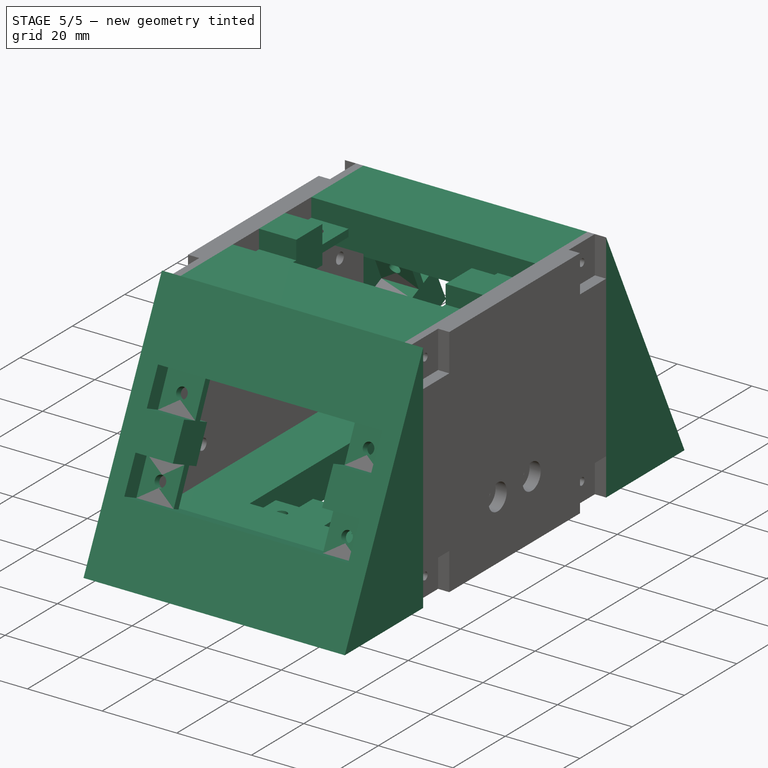
[diagram: stage 5 of 5 — iso view after this stage's code; geometry added in this stage tinted green]
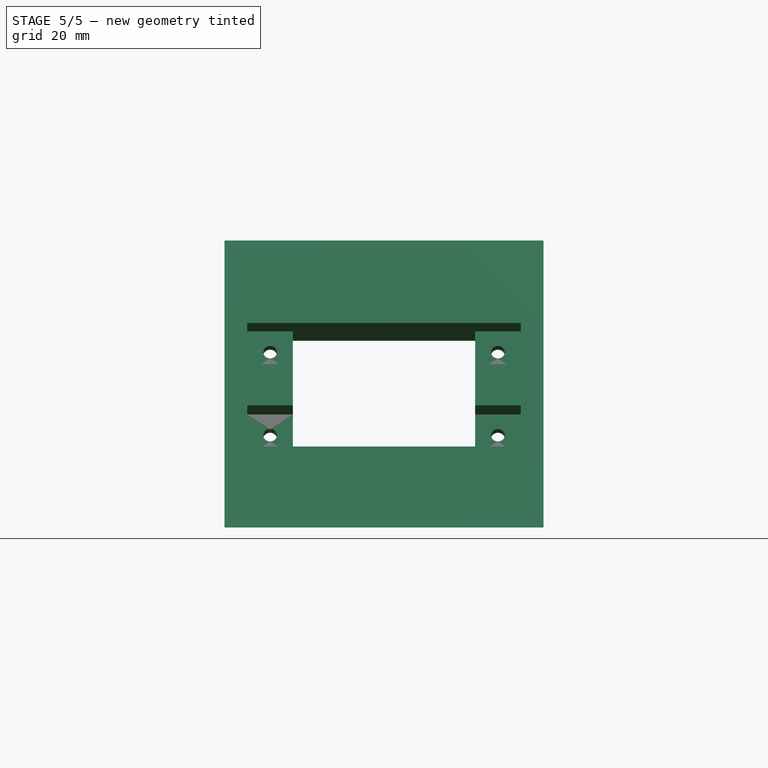
[diagram: stage 5 of 5 — front view after this stage's code; geometry added in this stage tinted green]
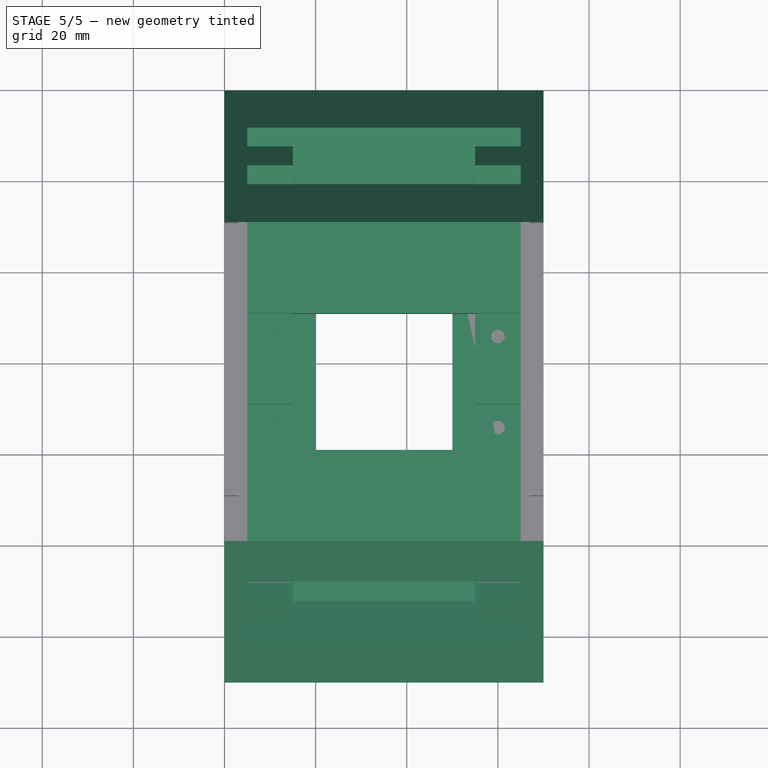
[diagram: stage 5 of 5 — top view after this stage's code; geometry added in this stage tinted green]
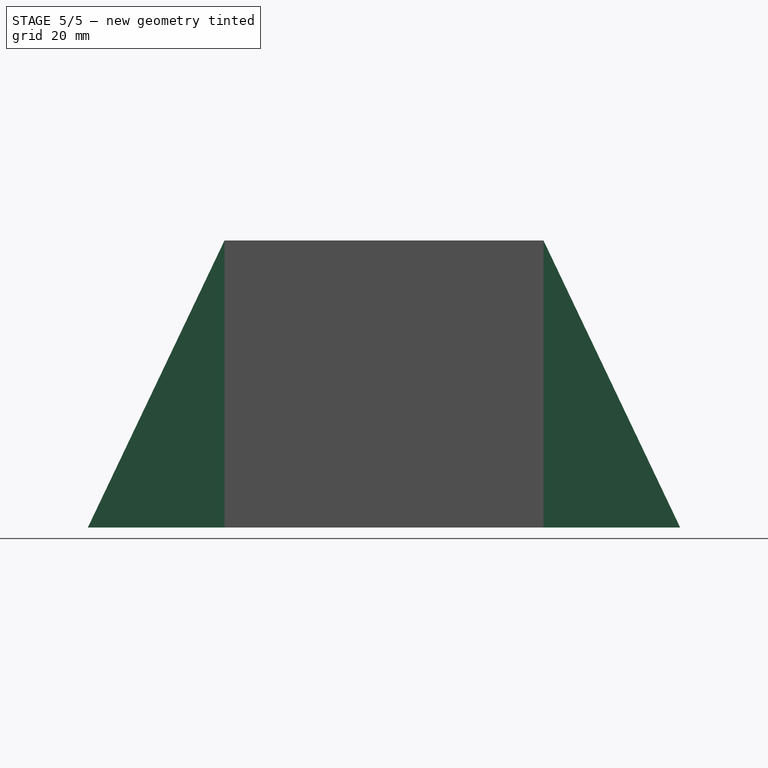
[diagram: stage 5 of 5 — right view after this stage's code; geometry added in this stage tinted green]
FEATURE [Sketcher::SketchObject] Sketch
  Placement = pos=(-5,-30,-10) rot=(0.57735,0.57735,0.57735;2.0944rad)
  sketch-geometry (5):
    g0: LineSegment StartX=0 StartY=0 StartZ=0 EndX=130 EndY=0 EndZ=0
    g1: LineSegment [constr] StartX=30 StartY=63 StartZ=0 EndX=30 EndY=0 EndZ=0
    g2: LineSegment StartX=30 StartY=63 StartZ=0 EndX=0 EndY=0 EndZ=0
    g3: LineSegment StartX=30 StartY=63 StartZ=0 EndX=100 EndY=63 EndZ=0
    g4: LineSegment StartX=100 StartY=63 StartZ=0 EndX=130 EndY=0 EndZ=0
  constraints (15):
    c: Horizontal(g0)
    c: DistanceX(g0,g0) = 130
    c: Vertical(g1)
    c: Coincident(g1,g2)
    c: DistanceX(g2,g1) = 30
    c: DistanceY(g1,g1) = 63
    c: PointOnObject(g1,g0)
    c: Coincident(g2,g0)
    c: Coincident(g3,g1)
    c: Horizontal(g3)
    c: DistanceX(g3,g3) = 70
    c: Coincident(g4,g3)
    c: Coincident(g4,g0)
    c: PointOnObject(g0,g-1)
    c: Coincident(g0,g-1)
FEATURE [PartDesign::Pad] Pad  label="BaseCarcasa"
  Length = 70
  Length2 = 100
  Placement = pos=(-5,-30,-10) rot=(0.57735,0.57735,0.57735;2.0944rad)
  Sketch = -> Sketch
  Type = 0
FEATURE [Sketcher::SketchObject] Sketch009
  ExternalGeometry = -> [Pocket002]
  Placement = pos=(0,5,0) rot=(1,0,0;1.5708rad)
  Support = -> Pocket002 [Face42]
  sketch-geometry (9):
    g0: LineSegment StartX=15 StartY=-3 StartZ=0 EndX=25 EndY=-3 EndZ=0
    g1: LineSegment StartX=25 StartY=-3 StartZ=0 EndX=25 EndY=-5 EndZ=0
    g2: LineSegment StartX=25 StartY=-5 StartZ=0 EndX=15 EndY=-5 EndZ=0
    g3: LineSegment StartX=15 StartY=-5 StartZ=0 EndX=15 EndY=-3 EndZ=0
    g4: LineSegment StartX=35 StartY=-3 StartZ=0 EndX=45 EndY=-3 EndZ=0
    g5: LineSegment StartX=45 StartY=-3 StartZ=0 EndX=45 EndY=-5 EndZ=0
    g6: LineSegment StartX=45 StartY=-5 StartZ=0 EndX=35 EndY=-5 EndZ=0
    g7: LineSegment StartX=35 StartY=-5 StartZ=0 EndX=35 EndY=-3 EndZ=0
    g8: LineSegment [constr] StartX=25 StartY=-5 StartZ=0 EndX=35 EndY=-5 EndZ=0
  constraints (30):
    c: Coincident(g0,g1)
    c: Coincident(g1,g2)
    c: Coincident(g2,g3)
    c: Coincident(g3,g0)
    c: Horizontal(g0)
    c: Horizontal(g2)
    c: Vertical(g1)
    c: Vertical(g3)
    c: Coincident(g4,g5)
    c: Coincident(g5,g6)
    c: Coincident(g6,g7)
    c: Coincident(g7,g4)
    c: Horizontal(g4)
    c: Horizontal(g6)
    c: Vertical(g5)
    c: Vertical(g7)
    c: Coincident(g8,g6)
    c: Coincident(g8,g1)
    c: Horizontal(g8)
    c: Equal(g4,g6)
    c: Equal(g6,g2)
    c: Equal(g2,g0)
    c: Equal(g3,g1)
    c: Equal(g1,g7)
    c: Equal(g7,g5)
    c: DistanceX(g8,g8) = 10
    c: DistanceX(g6,g6) = 10
    c: DistanceY(g5,g5) = 2
    c: PointOnObject(g2,g-3)
    c: DistanceY(g-4,g2) = 5
FEATURE [PartDesign::Pocket] Pocket003  label="InteriorCarcasa_hueco"
  Length = 10
  Sketch = -> Sketch009
  Type = 0
FEATURE [Part::Cut] Cut  label="Carcasa_base"
  Base = -> Pad
  Placement = pos=(5,0,10) rot=(0,0,1;0rad)
  Tool = -> Pocket003
FEATURE [Part::Cut] Cut001  label="Carcasa_base2"
  Base = -> Cut
  Tool = -> Array
FEATURE [Sketcher::SketchObject] Sketch010
  ExternalGeometry = -> [Cut001]
  Placement = pos=(0,-19.9351,9.00765) rot=(1,0,0;1.14641rad)
  Support = -> Cut001 [Face123]
  sketch-geometry (7):
    g0: Circle CenterX=10 CenterY=32.3482 CenterZ=0 NormalX=0 NormalY=0 NormalZ=1 Radius=1.5
    g1: Circle CenterX=60 CenterY=32.3482 CenterZ=0 NormalX=0 NormalY=0 NormalZ=1 Radius=1.5
    g2: Circle CenterX=10 CenterY=12.3482 CenterZ=0 NormalX=0 NormalY=0 NormalZ=1 Radius=1.5
    g3: Circle CenterX=60 CenterY=12.3482 CenterZ=0 NormalX=0 NormalY=0 NormalZ=1 Radius=1.5
    g4: LineSegment [constr] StartX=60 StartY=32.3482 StartZ=0 EndX=10 EndY=32.3482 EndZ=0
    g5: LineSegment [constr] StartX=10 StartY=32.3482 StartZ=0 EndX=10 EndY=12.3482 EndZ=0
    g6: LineSegment [constr] StartX=10 StartY=12.3482 StartZ=0 EndX=60 EndY=12.3482 EndZ=0
  constraints (18):
    c: Equal(g1,g0)
    c: Equal(g0,g2)
    c: Equal(g2,g3)
    c: Horizontal(g4)
    c: Coincident(g4,g5)
    c: Vertical(g5)
    c: Coincident(g5,g6)
    c: Horizontal(g6)
    c: Equal(g4,g6)
    c: DistanceX(g6,g6) = 50
    c: DistanceY(g5,g5) = 20
    c: Coincident(g0,g4)
    c: Coincident(g1,g4)
    c: Coincident(g2,g5)
    c: Coincident(g3,g6)
    c: Radius(g1) = 1.5
    c: DistanceY(g-3,g0) = 5
    c: DistanceX(g0,g-3) = 5
FEATURE [PartDesign::Pocket] Pocket004  label="Agujeros_I"
  Length = 3
  Sketch = -> Sketch010
  Type = 0
FEATURE [Sketcher::SketchObject] Sketch011
  ExternalGeometry = -> [Pocket004]
  Placement = pos=(0,78.0666,35.2742) rot=(0,0.542326,0.840168;3.14159rad)
  Support = -> Pocket004 [Face130]
  sketch-geometry (7):
    g0: LineSegment [constr] StartX=-10 StartY=3.52467 StartZ=0 EndX=-60 EndY=3.52467 EndZ=0
    g1: LineSegment [constr] StartX=-60 StartY=3.52467 StartZ=0 EndX=-60 EndY=-16.4753 EndZ=0
    g2: LineSegment [constr] StartX=-60 StartY=-16.4753 StartZ=0 EndX=-10 EndY=-16.4753 EndZ=0
    g3: Circle CenterX=-60 CenterY=3.52467 CenterZ=0 NormalX=0 NormalY=0 NormalZ=1 Radius=1.5
    g4: Circle CenterX=-10 CenterY=3.52467 CenterZ=0 NormalX=0 NormalY=0 NormalZ=1 Radius=1.5
    g5: Circle CenterX=-60 CenterY=-16.4753 CenterZ=0 NormalX=0 NormalY=0 NormalZ=1 Radius=1.5
    g6: Circle CenterX=-10 CenterY=-16.4753 CenterZ=0 NormalX=0 NormalY=0 NormalZ=1 Radius=1.5
  constraints (18):
    c: Horizontal(g0)
    c: Coincident(g0,g1)
    c: Vertical(g1)
    c: Coincident(g1,g2)
    c: Horizontal(g2)
    c: Equal(g0,g2)
    c: DistanceX(g2,g2) = 50
    c: DistanceY(g1,g1) = 20
    c: Coincident(g3,g0)
    c: Coincident(g4,g0)
    c: Coincident(g5,g1)
    c: Coincident(g6,g2)
    c: Equal(g4,g6)
    c: Equal(g6,g5)
    c: Equal(g5,g3)
    c: Radius(g4) = 1.5
    c: DistanceX(g0,g-3) = 5
    c: DistanceY(g-3,g0) = 5
FEATURE [PartDesign::Pocket] Pocket005  label="Agujeros_D"
  Length = 3
  Sketch = -> Sketch011
  Type = 0
FEATURE [Part::Cylinder] Cylinder001  label="AgujeroInf"
  Angle = 360
  Height = 4
  Radius = 1.5
FEATURE [Part::FeaturePython] Array002  label="Agujeros_Inf"  # Draft array (typed FeaturePython)
  Angle = 360
  ArrayType = 0
  Axis = (0,0,1)
  Base = -> Cylinder001
  Center = (0,0,0)
  Fuse = false
  IntervalAxis = (0,0,0)
  IntervalX = (20,0,0)
  IntervalY = (0,50,0)
  IntervalZ = (0,0,0)
  NumberPolar = 1
  NumberX = 2
  NumberY = 2
  NumberZ = 1
  Placement = pos=(25,10,4) rot=(0,0,1;0rad)
FEATURE [Part::Cut] Cut002  label="Carcasa_base3"
  Base = -> Pocket005
  Tool = -> Array001
FEATURE [Part::Cut] Cut003  label="Carcasa_base4"
  Base = -> Cut002
  Tool = -> Array002
FEATURE [Part::Cylinder] Cylinder002  label="AgujeroA"
  Angle = 360
  Height = 5
  Placement = pos=(0,0,0) rot=(0,1,0;1.5708rad)
  Radius = 1
FEATURE [Part::FeaturePython] Array003  label="AgujerosA"  # Draft array (typed FeaturePython)
  Angle = 360
  ArrayType = 0
  Axis = (0,0,1)
  Base = -> Cylinder002
  Center = (0,0,0)
  Fuse = false
  IntervalAxis = (0,0,0)
  IntervalX = (0,0,53)
  IntervalY = (0,60,0)
  IntervalZ = (0,0,0)
  NumberPolar = 1
  NumberX = 2
  NumberY = 2
  NumberZ = 1
  Placement = pos=(2,5,5) rot=(0,0,1;0rad)
FEATURE [Part::Cut] Cut004  label="Carcasa_base5"
  Base = -> Cut003
  Tool = -> Array004
FEATURE [Part::Cut] Cut005  label="Carcasa_Comunicacion"
  Base = -> Cut004
  Tool = -> Array003
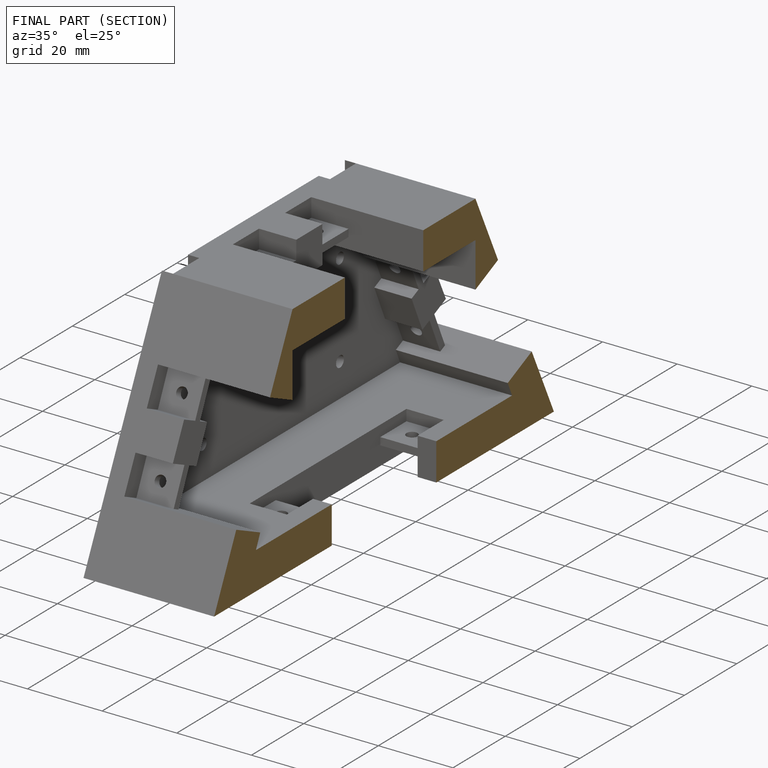
[diagram: finished part — half-section view (interior)]
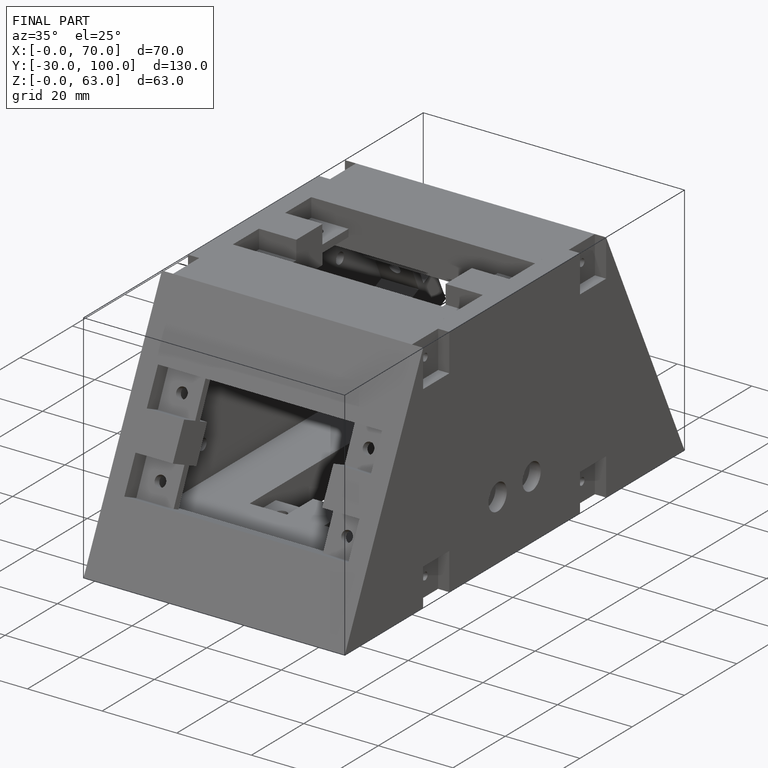
[diagram: finished part — iso view with bounding-box wireframe]
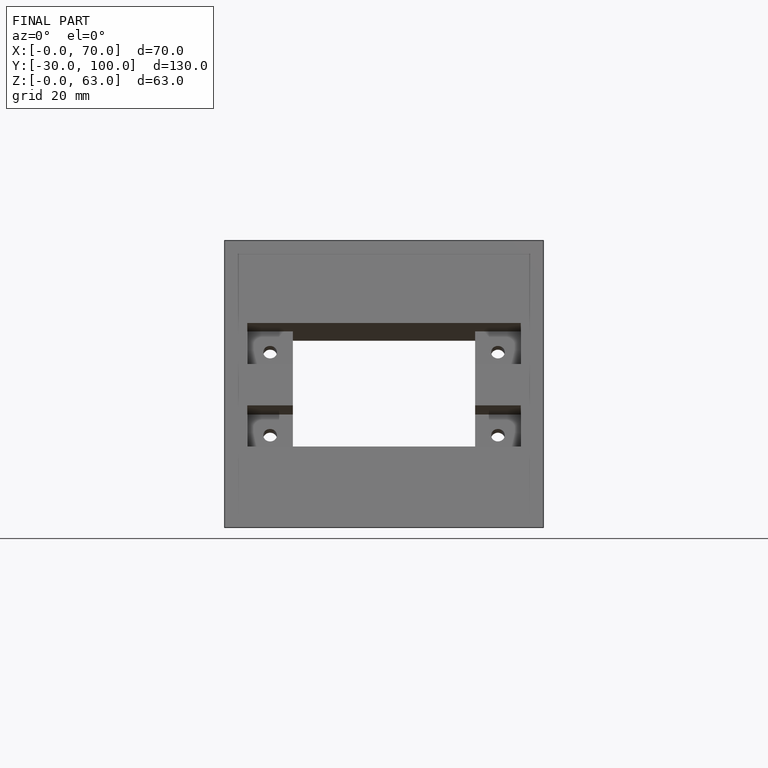
[diagram: finished part — front view with bounding-box wireframe]
